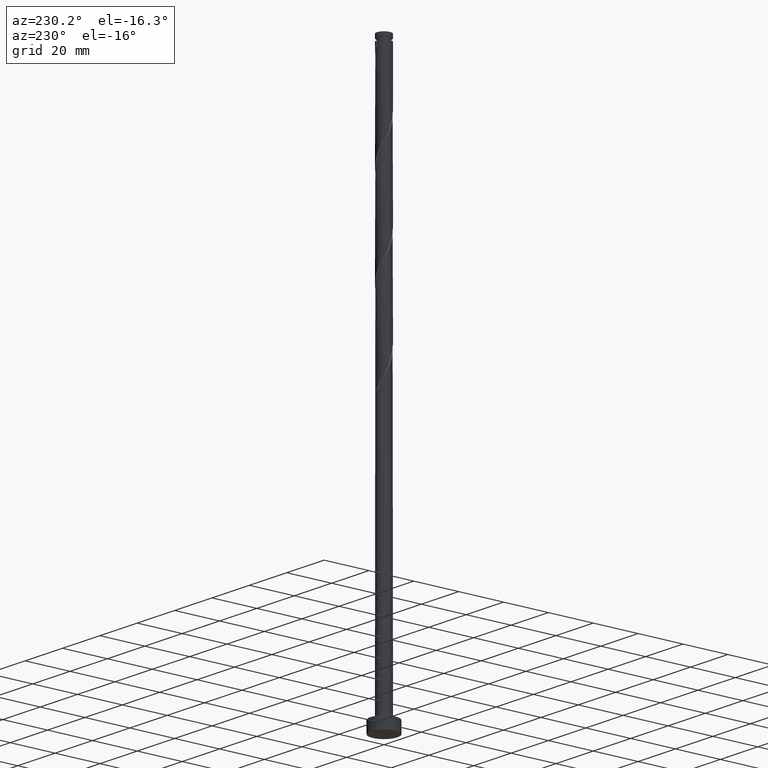
[diagram: clean part render]
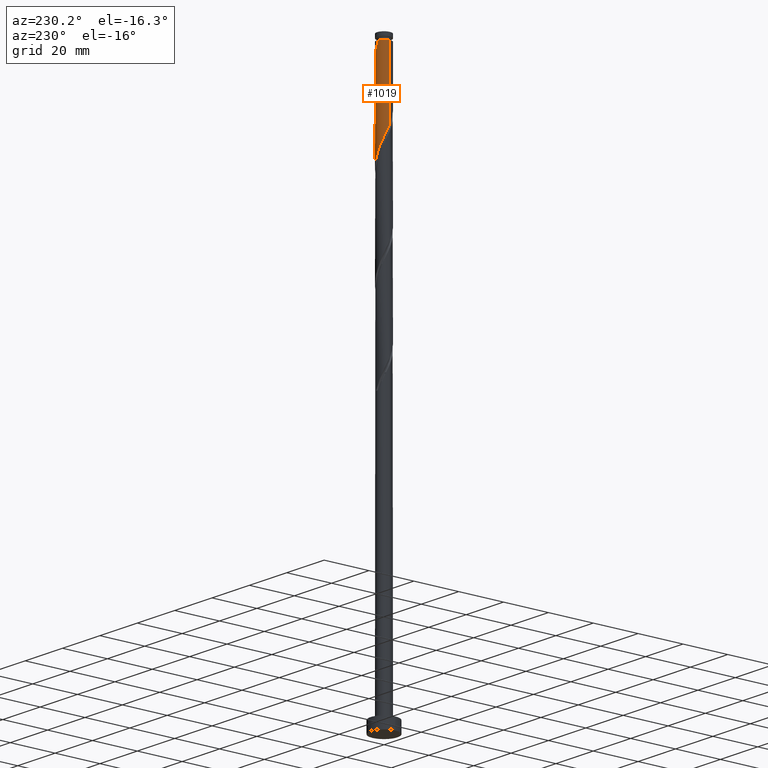
[diagram: same view with one face highlighted and labeled with its STEP entity id]
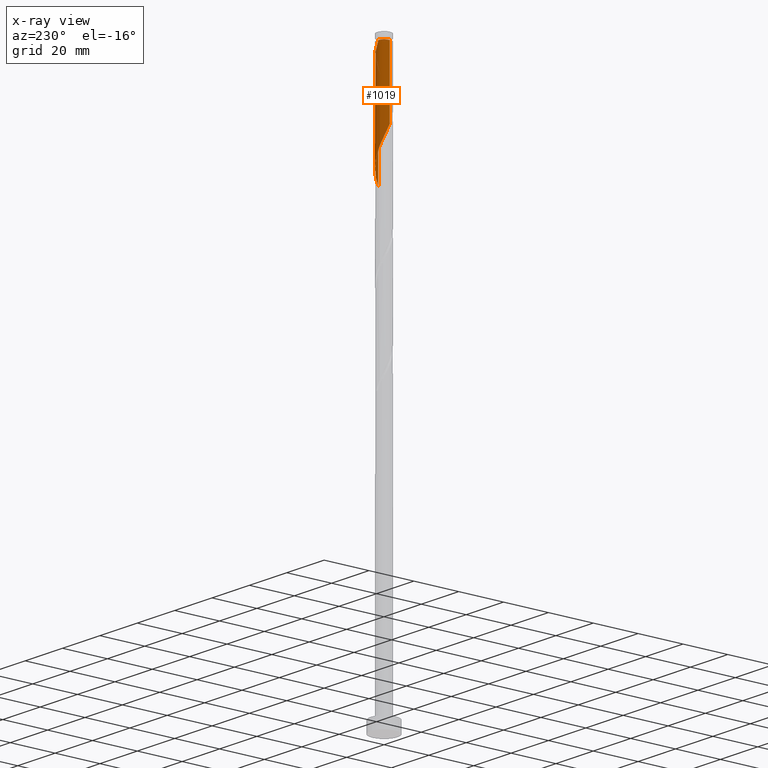
[diagram: x-ray of the same camera — body ghosted, the highlighted face saturated]
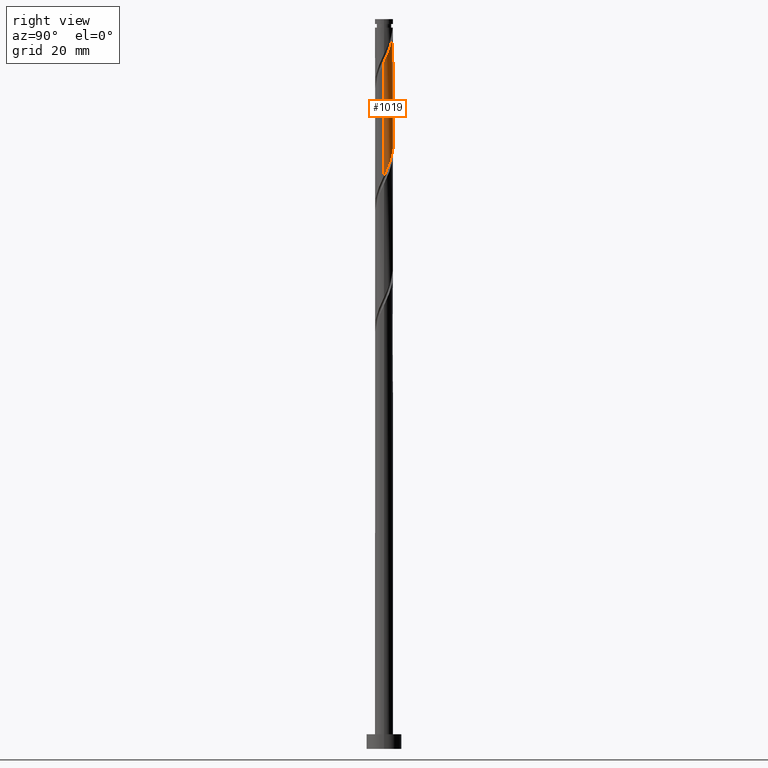
[diagram: same view with one face highlighted and labeled with its STEP entity id]
A machine part, auxiliary view. The second image highlights one B-rep face of the part: STEP entity #1019.
The next image is the same camera in x-ray: the body ghosted, the highlighted face saturated — about 0% of this face is hidden behind the body in this view.
A second angle (right view) of the same face is appended — the face is thin or edge-on in the first view.
In plain terms, the highlighted cylindrical surface (edge-blend (fillet) strip) has radius 3.1 mm, axis along (-0, -0, -1).
Its self-contained STEP definition (entity closure, byte-faithful):
#47 = CARTESIAN_POINT ( 'NONE',  ( 3.099999999999999645, 4.112883096653824131E-15, 196.3403896207215382 ) ) ;
#61 = CARTESIAN_POINT ( 'NONE',  ( 0.000000000000000000, 0.000000000000000000, 247.0958010781630207 ) ) ;
#80 = CARTESIAN_POINT ( 'NONE',  ( 3.100000000000005418, -1.301166652395925986E-15, 235.3512125356045033 ) ) ;
#216 = CARTESIAN_POINT ( 'NONE',  ( 1.552816185334434218, 2.683050855754219199, 242.2881087704707284 ) ) ;
#279 = FACE_OUTER_BOUND ( 'NONE', #315, .T. ) ;
#290 = CARTESIAN_POINT ( 'NONE',  ( -0.5041613131675906079, 3.081802145527458681, 207.8329805653424955 ) ) ;
#315 = EDGE_LOOP ( 'NONE', ( #409, #834, #719, #1284, #1105 ) ) ;
#324 = CARTESIAN_POINT ( 'NONE',  ( -2.822669712321746793, 1.335746528729902183, 214.2432369755989612 ) ) ;
#329 = CARTESIAN_POINT ( 'NONE',  ( 1.958059922082858728, 2.403331300826598405, 202.2240062063681592 ) ) ;
#344 = CARTESIAN_POINT ( 'NONE',  ( 2.420982992632358055, 1.972441239494200138, 239.8842626166245395 ) ) ;
#386 = CARTESIAN_POINT ( 'NONE',  ( 0.1280745435953598022, 3.097353210611097918, 245.4932369755989043 ) ) ;
#400 = CARTESIAN_POINT ( 'NONE',  ( -0.6168922110061206832, 3.038000000000001588, 247.0958010781630207 ) ) ;
#404 = DIRECTION ( 'NONE',  ( -1.000000000000000000, 0.000000000000000000, 0.000000000000000000 ) ) ;
#409 = ORIENTED_EDGE ( 'NONE', *, *, #537, .F. ) ;
#436 = CARTESIAN_POINT ( 'NONE',  ( -2.941491420319844785, 0.9785848068434026548, 215.0445190268810052 ) ) ;
#464 = CARTESIAN_POINT ( 'NONE',  ( 3.100000000000005862, 0.1232967040439820611, 235.6153834512374772 ) ) ;
#466 = CARTESIAN_POINT ( 'NONE',  ( 3.099999999999999645, 4.112883096653824131E-15, 196.3403896207215382 ) ) ;
#471 = LINE ( 'NONE', #580, #1085 ) ;
#488 = CARTESIAN_POINT ( 'NONE',  ( 3.060313128317948994, 0.6214230849569025716, 236.6791344114963636 ) ) ;
#537 = EDGE_CURVE ( 'NONE', #920, #738, #1351, .T. ) ;
#564 = CARTESIAN_POINT ( 'NONE',  ( 2.476317086136641699, 1.864900450133392784, 200.6214421038040996 ) ) ;
#573 = CARTESIAN_POINT ( 'NONE',  ( -2.149790266979321185, 2.233473037222740931, 211.8393908217528292 ) ) ;
#580 = CARTESIAN_POINT ( 'NONE',  ( 3.100000000000000089, 3.796405077356794918E-16, 250.0000000000000000 ) ) ;
#583 = CARTESIAN_POINT ( 'NONE',  ( 1.326007432615846859, 2.802089272069597570, 203.8265703089322471 ) ) ;
#593 = CARTESIAN_POINT ( 'NONE',  ( -3.099999999999999201, 0.1232967040439909984, 216.9095520384219355 ) ) ;
#596 = VERTEX_POINT ( 'NONE', #1093 ) ;
#621 = CARTESIAN_POINT ( 'NONE',  ( 3.090207698699935612, 0.2462039376120576106, 235.8778523602143480 ) ) ;
#633 = AXIS2_PLACEMENT_3D ( 'NONE', #61, #1764, #903 ) ;
#712 = CARTESIAN_POINT ( 'NONE',  ( -0.1280745435953560274, 3.097353210611092145, 207.0316985140604800 ) ) ;
#719 = ORIENTED_EDGE ( 'NONE', *, *, #1233, .F. ) ;
#738 = VERTEX_POINT ( 'NONE', #935 ) ;
#745 = CARTESIAN_POINT ( 'NONE',  ( -2.621826352477049316, 1.654093884112051160, 213.4419549243168603 ) ) ;
#759 = CARTESIAN_POINT ( 'NONE',  ( 3.100000000000005418, -1.301166652395925986E-15, 235.3512125356045033 ) ) ;
#781 = AXIS2_PLACEMENT_3D ( 'NONE', #956, #1492, #404 ) ;
#783 = CARTESIAN_POINT ( 'NONE',  ( 0.5041613131675937165, 3.081802145527464010, 244.6919549243168888 ) ) ;
#790 =( BOUNDED_CURVE ( )  B_SPLINE_CURVE ( 2, ( #863, #593, #1584, #1689, #436, #324, #745, #1578, #573, #1734, #879, #1703, #851, #290, #712, #1007, #987, #1138, #583, #1262, #329, #998, #564, #1114, #1283, #1540, #1551, #1150, #466 ),
 .UNSPECIFIED., .F., .T. ) 
 B_SPLINE_CURVE_WITH_KNOTS ( ( 3, 2, 2, 2, 2, 2, 2, 2, 2, 2, 2, 2, 2, 2, 3 ),
 ( 0.4295271625973834939, 0.4326923076923077094, 0.4423076923076922906, 0.4519230769230769273, 0.4615384615384615641, 0.4711538461538461453, 0.4807692307692307820, 0.4903846153846153633, 0.5000000000000000000, 0.5096153846153845812, 0.5192307692307692735, 0.5288461538461538547, 0.5384615384615384359, 0.5480769230769231282, 0.5545271625973834384 ),
 .UNSPECIFIED. ) 
 CURVE ( )  GEOMETRIC_REPRESENTATION_ITEM ( )  RATIONAL_B_SPLINE_CURVE ( ( 0.9061636035682862911, 0.9069090390690750514, 0.9090909090909315982, 0.9024626128164350281, 0.9090909090909315982, 0.9024626128164350281, 0.9090909090909315982, 0.9024626128164350281, 0.9090909090909315982, 0.9024626128164350281, 0.9090909090909315982, 0.9024626128164350281, 0.9090909090909315982, 0.9024626128164350281, 0.9090909090909315982, 0.9024626128164350281, 0.9090909090909315982, 0.9024626128164350281, 0.9090909090909315982, 0.9024626128164350281, 0.9090909090909315982, 0.9024626128164350281, 0.9090909090909315982, 0.9024626128164350281, 0.9090909090909315982, 0.9024626128164350281, 0.9090909090909315982, 0.9046444828382915748, 0.9061636035682865131 ) ) 
 REPRESENTATION_ITEM ( '' )  );
#834 = ORIENTED_EDGE ( 'NONE', *, *, #1836, .T. ) ;
#851 = CARTESIAN_POINT ( 'NONE',  ( -0.8655980712550804812, 2.976699511042302237, 208.6342626166245680 ) ) ;
#863 = CARTESIAN_POINT ( 'NONE',  ( -3.099999999999999645, 3.888544018654523613E-16, 217.1737229540548526 ) ) ;
#879 = CARTESIAN_POINT ( 'NONE',  ( -1.552816185334429777, 2.683050855754215203, 210.2368267191886559 ) ) ;
#902 = CARTESIAN_POINT ( 'NONE',  ( 2.149790266979326070, 2.233473037222744040, 240.6855446679066119 ) ) ;
#903 = DIRECTION ( 'NONE',  ( -1.000000000000000000, 0.000000000000000000, 0.000000000000000000 ) ) ;
#910 = CARTESIAN_POINT ( 'NONE',  ( 2.822669712321752122, 1.335746528729902183, 238.2816985140604800 ) ) ;
#920 = VERTEX_POINT ( 'NONE', #80 ) ;
#935 = CARTESIAN_POINT ( 'NONE',  ( -0.6168922110061206832, 3.038000000000001588, 247.0958010781630207 ) ) ;
#936 = EDGE_CURVE ( 'NONE', #1087, #596, #1627, .T. ) ;
#939 = CARTESIAN_POINT ( 'NONE',  ( -3.099999999999982325, 0.000000000000000000, 247.0958010781630207 ) ) ;
#942 = CARTESIAN_POINT ( 'NONE',  ( -0.2480122259768767212, 3.112904275694731826, 246.2945190268809768 ) ) ;
#952 = VECTOR ( 'NONE', #1073, 1000.000000000000000 ) ;
#956 = CARTESIAN_POINT ( 'NONE',  ( 0.000000000000000000, 0.000000000000000000, 250.0000000000000000 ) ) ;
#987 = CARTESIAN_POINT ( 'NONE',  ( 0.6168922110061069164, 3.037999999999998924, 205.4291344114963920 ) ) ;
#998 = CARTESIAN_POINT ( 'NONE',  ( 2.249877174969357796, 2.165579781819274352, 201.4227241550861152 ) ) ;
#1007 = CARTESIAN_POINT ( 'NONE',  ( 0.2480122259768786641, 3.112904275694726053, 206.2304164627784360 ) ) ;
#1019 = ADVANCED_FACE ( 'NONE', ( #279 ), #1219, .T. ) ;
#1031 = CARTESIAN_POINT ( 'NONE',  ( 2.941491420319851446, 0.9785848068434013225, 237.4804164627784075 ) ) ;
#1073 = DIRECTION ( 'NONE',  ( -0.000000000000000000, -0.000000000000000000, -1.000000000000000000 ) ) ;
#1085 = VECTOR ( 'NONE', #1720, 1000.000000000000000 ) ;
#1087 = VERTEX_POINT ( 'NONE', #939 ) ;
#1093 = CARTESIAN_POINT ( 'NONE',  ( -3.099999999999999645, 3.888544018654523613E-16, 217.1737229540548526 ) ) ;
#1105 = ORIENTED_EDGE ( 'NONE', *, *, #1363, .T. ) ;
#1114 = CARTESIAN_POINT ( 'NONE',  ( 2.702756997303925157, 1.564221118447511216, 199.8201600525219703 ) ) ;
#1138 = CARTESIAN_POINT ( 'NONE',  ( 0.9857721960353355017, 2.963095724305272238, 204.6278523602143764 ) ) ;
#1150 = CARTESIAN_POINT ( 'NONE',  ( 3.100000000000000977, 0.2518949594648341450, 196.8800903580698503 ) ) ;
#1160 = CIRCLE ( 'NONE', #633, 3.099999999999982325 ) ;
#1179 = CARTESIAN_POINT ( 'NONE',  ( 1.878597541326295861, 2.494504834951285943, 241.4868267191885707 ) ) ;
#1213 = CARTESIAN_POINT ( 'NONE',  ( 1.227034829342573241, 2.871596876557151123, 243.0893908217527155 ) ) ;
#1219 = CYLINDRICAL_SURFACE ( 'NONE', #781, 3.100000000000000089 ) ;
#1233 = EDGE_CURVE ( 'NONE', #596, #1547, #790, .T. ) ;
#1262 = CARTESIAN_POINT ( 'NONE',  ( 1.666242669196356996, 2.641082819833925122, 203.0252882576502884 ) ) ;
#1283 = CARTESIAN_POINT ( 'NONE',  ( 2.850659702190533995, 1.218088363915759365, 199.0188780012399263 ) ) ;
#1284 = ORIENTED_EDGE ( 'NONE', *, *, #936, .F. ) ;
#1351 =( BOUNDED_CURVE ( )  B_SPLINE_CURVE ( 2, ( #759, #464, #621, #488, #1031, #910, #1597, #344, #902, #1179, #216, #1213, #1786, #783, #386, #942, #400 ),
 .UNSPECIFIED., .F., .T. ) 
 B_SPLINE_CURVE_WITH_KNOTS ( ( 3, 2, 2, 2, 2, 2, 2, 2, 3 ),
 ( 0.6795271625973833274, 0.6826923076923077094, 0.6923076923076922906, 0.7019230769230768718, 0.7115384615384615641, 0.7211538461538461453, 0.7307692307692308376, 0.7403846153846154188, 0.7500000000000000000 ),
 .UNSPECIFIED. ) 
 CURVE ( )  GEOMETRIC_REPRESENTATION_ITEM ( )  RATIONAL_B_SPLINE_CURVE ( ( 0.9061636035682938406, 0.9069090390690826009, 0.9090909090909391477, 0.9024626128164425776, 0.9090909090909391477, 0.9024626128164425776, 0.9090909090909391477, 0.9024626128164425776, 0.9090909090909391477, 0.9024626128164425776, 0.9090909090909391477, 0.9024626128164425776, 0.9090909090909391477, 0.9024626128164425776, 0.9090909090909391477, 0.9024626128164425776, 0.9090909090909391477 ) ) 
 REPRESENTATION_ITEM ( '' )  );
#1363 = EDGE_CURVE ( 'NONE', #1087, #738, #1160, .T. ) ;
#1386 = CARTESIAN_POINT ( 'NONE',  ( -3.100000000000000089, 0.000000000000000000, 250.0000000000000000 ) ) ;
#1492 = DIRECTION ( 'NONE',  ( -0.000000000000000000, -0.000000000000000000, -1.000000000000000000 ) ) ;
#1540 = CARTESIAN_POINT ( 'NONE',  ( 2.998562407077144609, 0.8719556093840056255, 198.2175959499578823 ) ) ;
#1547 = VERTEX_POINT ( 'NONE', #47 ) ;
#1551 = CARTESIAN_POINT ( 'NONE',  ( 3.059332338079530089, 0.5004854095583954887, 197.4163138986758668 ) ) ;
#1578 = CARTESIAN_POINT ( 'NONE',  ( -2.420982992632351838, 1.972441239494199250, 212.6406728730348732 ) ) ;
#1584 = CARTESIAN_POINT ( 'NONE',  ( -3.090207698699929395, 0.2462039376120597756, 216.6470831294450363 ) ) ;
#1597 = CARTESIAN_POINT ( 'NONE',  ( 2.621826352477054645, 1.654093884112052937, 239.0829805653424955 ) ) ;
#1627 = LINE ( 'NONE', #1386, #952 ) ;
#1689 = CARTESIAN_POINT ( 'NONE',  ( -3.060313128317944109, 0.6214230849569030157, 215.8458010781630492 ) ) ;
#1703 = CARTESIAN_POINT ( 'NONE',  ( -1.227034829342569688, 2.871596876557147127, 209.4355446679066119 ) ) ;
#1720 = DIRECTION ( 'NONE',  ( -0.000000000000000000, -0.000000000000000000, -1.000000000000000000 ) ) ;
#1734 = CARTESIAN_POINT ( 'NONE',  ( -1.878597541326290532, 2.494504834951285055, 211.0381087704707284 ) ) ;
#1764 = DIRECTION ( 'NONE',  ( -0.000000000000000000, -0.000000000000000000, -1.000000000000000000 ) ) ;
#1786 = CARTESIAN_POINT ( 'NONE',  ( 0.8655980712550847000, 2.976699511042306234, 243.8906728730348448 ) ) ;
#1836 = EDGE_CURVE ( 'NONE', #920, #1547, #471, .T. ) ;